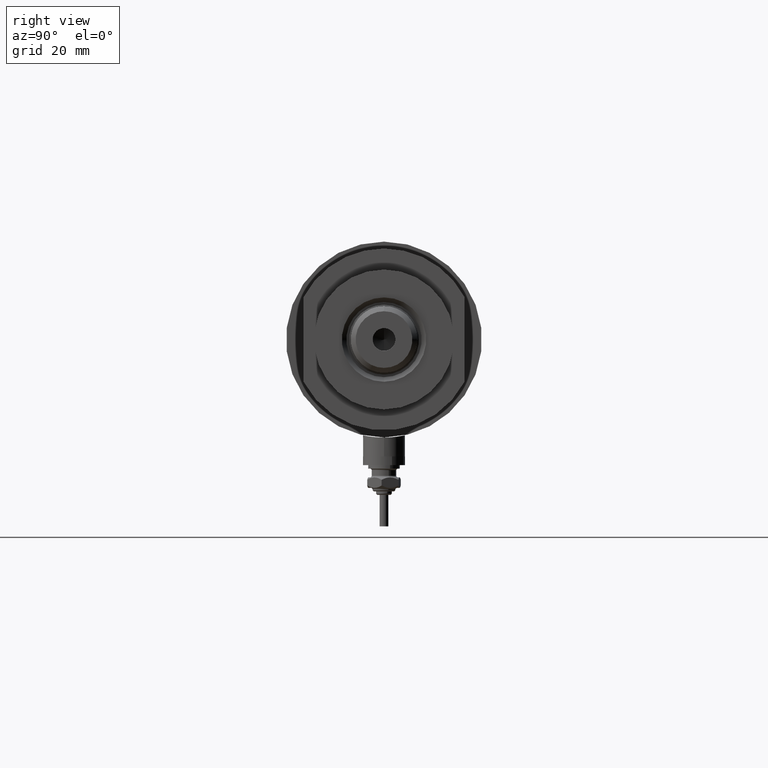
[diagram: clean part render]
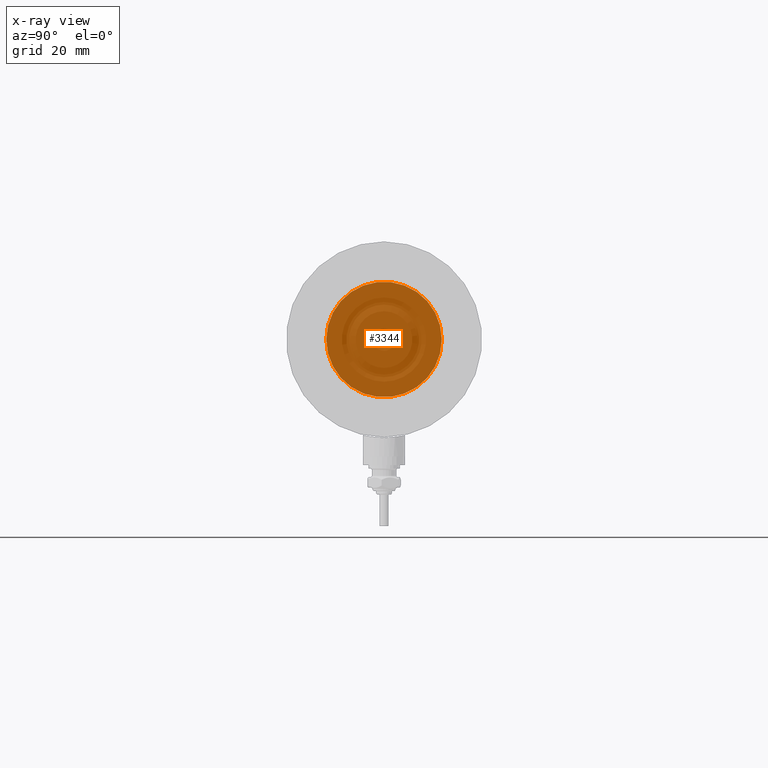
[diagram: x-ray — body ghosted, one internal face saturated and labeled with its STEP entity id]
A machine part, right view, then the same camera in x-ray: the body is ghosted and one INTERNAL B-rep face — a face not visible from any outside direction — is saturated and labeled: STEP entity #3344.
In plain terms, the highlighted planar face has unit normal (1, 0, -0).
Its self-contained STEP definition (entity closure, byte-faithful):
#8 = DIRECTION ( 'NONE',  ( 0.000000000000000000, 0.000000000000000000, -1.000000000000000000 ) ) ;
#93 = EDGE_LOOP ( 'NONE', ( #4984, #2381 ) ) ;
#177 = AXIS2_PLACEMENT_3D ( 'NONE', #3492, #4664, #2771 ) ;
#331 = EDGE_CURVE ( 'NONE', #1128, #3692, #1151, .T. ) ;
#590 = DIRECTION ( 'NONE',  ( 0.000000000000000000, 0.000000000000000000, -1.000000000000000000 ) ) ;
#810 = AXIS2_PLACEMENT_3D ( 'NONE', #3351, #590, #2909 ) ;
#1128 = VERTEX_POINT ( 'NONE', #3968 ) ;
#1151 = CIRCLE ( 'NONE', #810, 16.50000000000000000 ) ;
#2381 = ORIENTED_EDGE ( 'NONE', *, *, #4626, .T. ) ;
#2385 = PLANE ( 'NONE',  #4078 ) ;
#2746 = FACE_OUTER_BOUND ( 'NONE', #93, .T. ) ;
#2771 = DIRECTION ( 'NONE',  ( -1.000000000000000000, 0.000000000000000000, 0.000000000000000000 ) ) ;
#2909 = DIRECTION ( 'NONE',  ( -1.000000000000000000, 0.000000000000000000, 0.000000000000000000 ) ) ;
#3187 = CARTESIAN_POINT ( 'NONE',  ( 0.000000000000000000, 0.000000000000000000, -25.80000000000000426 ) ) ;
#3344 = ADVANCED_FACE ( 'NONE', ( #2746 ), #2385, .T. ) ;
#3351 = CARTESIAN_POINT ( 'NONE',  ( 0.000000000000000000, 0.000000000000000000, -25.80000000000000426 ) ) ;
#3384 = CIRCLE ( 'NONE', #177, 16.50000000000000000 ) ;
#3492 = CARTESIAN_POINT ( 'NONE',  ( 0.000000000000000000, 0.000000000000000000, -25.80000000000000426 ) ) ;
#3692 = VERTEX_POINT ( 'NONE', #4312 ) ;
#3881 = DIRECTION ( 'NONE',  ( -1.000000000000000000, 0.000000000000000000, -0.000000000000000000 ) ) ;
#3968 = CARTESIAN_POINT ( 'NONE',  ( 16.50000000000000000, 0.000000000000000000, -25.80000000000000426 ) ) ;
#4078 = AXIS2_PLACEMENT_3D ( 'NONE', #3187, #8, #3881 ) ;
#4312 = CARTESIAN_POINT ( 'NONE',  ( -16.50000000000000000, 2.020667218593133100E-15, -25.80000000000000426 ) ) ;
#4626 = EDGE_CURVE ( 'NONE', #3692, #1128, #3384, .T. ) ;
#4664 = DIRECTION ( 'NONE',  ( 0.000000000000000000, 0.000000000000000000, -1.000000000000000000 ) ) ;
#4984 = ORIENTED_EDGE ( 'NONE', *, *, #331, .T. ) ;